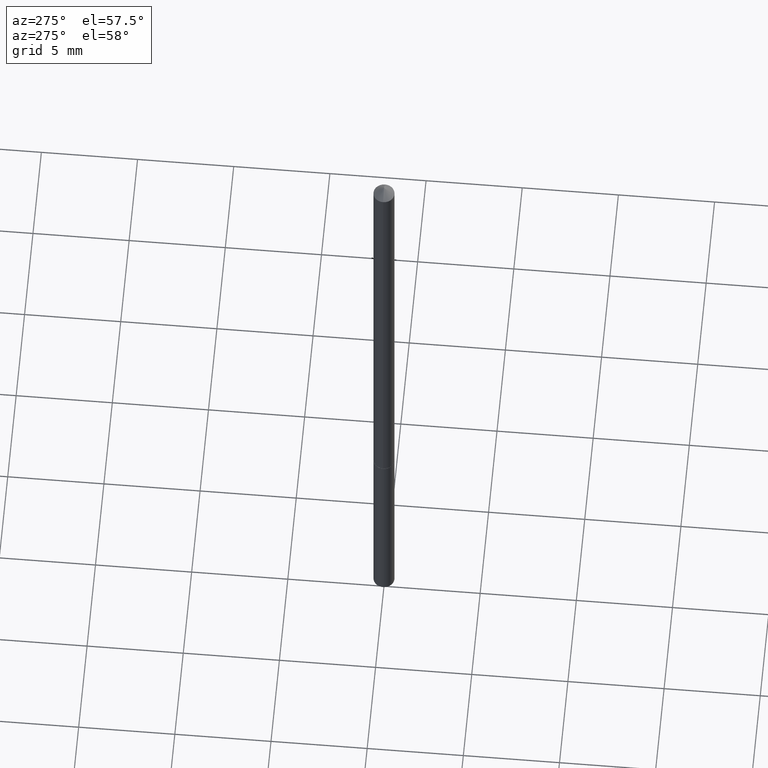
[diagram: clean part render]
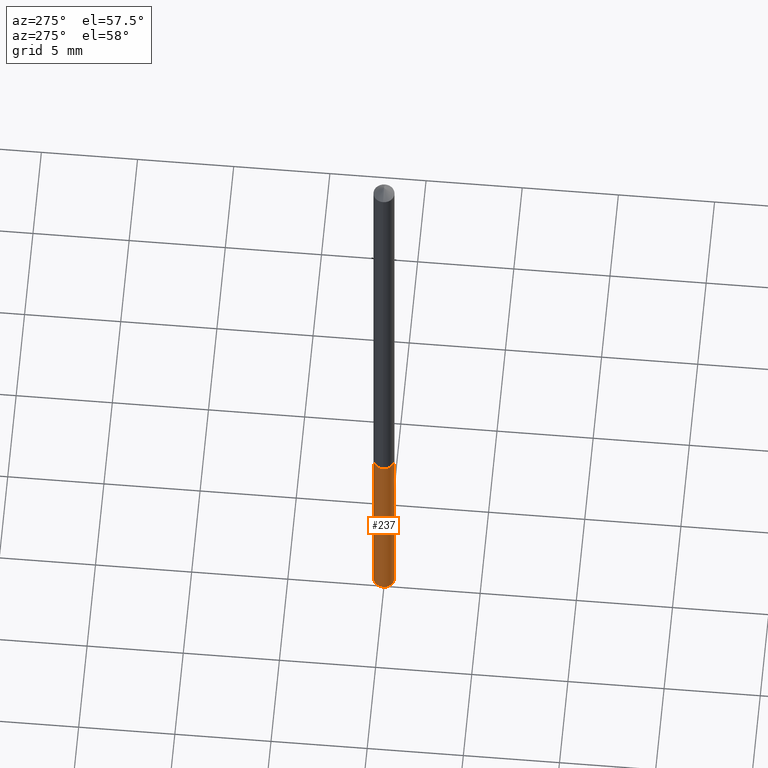
[diagram: same view with one face highlighted and labeled with its STEP entity id]
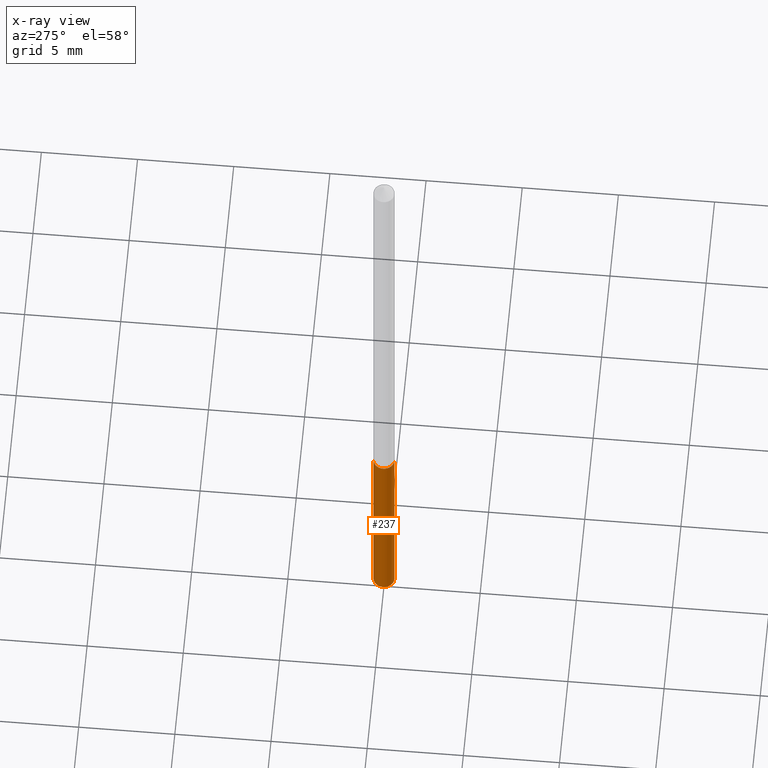
[diagram: x-ray of the same camera — body ghosted, the highlighted face saturated]
A machine part, auxiliary view. The second image highlights one B-rep face of the part: STEP entity #237.
The next image is the same camera in x-ray: the body ghosted, the highlighted face saturated — about 0% of this face is hidden behind the body in this view.
In plain terms, the highlighted cylindrical surface (edge-blend (fillet) strip) has radius 0.5461 mm, axis along (-0, 0, 1).
Its self-contained STEP definition (entity closure, byte-faithful):
#9 = VERTEX_POINT ( 'NONE', #14 ) ;
#12 = AXIS2_PLACEMENT_3D ( 'NONE', #102, #357, #213 ) ;
#14 = CARTESIAN_POINT ( 'NONE',  ( -1.501336975702182702E-16, -0.02150000000000521286, -1.492174639963277150 ) ) ;
#16 = ORIENTED_EDGE ( 'NONE', *, *, #87, .F. ) ;
#20 = LINE ( 'NONE', #83, #360 ) ;
#21 = FACE_OUTER_BOUND ( 'NONE', #165, .T. ) ;
#49 = AXIS2_PLACEMENT_3D ( 'NONE', #327, #336, #303 ) ;
#55 = CARTESIAN_POINT ( 'NONE',  ( 1.527666881884470178E-16, 0.02149999999999635883, -1.043000000000000149 ) ) ;
#59 = DIRECTION ( 'NONE',  ( -2.445459886220221003E-29, 3.491494112740597755E-15, 1.000000000000000000 ) ) ;
#76 = ORIENTED_EDGE ( 'NONE', *, *, #263, .F. ) ;
#82 = CYLINDRICAL_SURFACE ( 'NONE', #49, 0.02150000000000000175 ) ;
#83 = CARTESIAN_POINT ( 'NONE',  ( -1.501336975702292156E-16, -0.02150000000000364120, -1.042999999999999927 ) ) ;
#87 = EDGE_CURVE ( 'NONE', #229, #317, #210, .T. ) ;
#98 = VECTOR ( 'NONE', #107, 39.37007874015748143 ) ;
#99 = ORIENTED_EDGE ( 'NONE', *, *, #207, .T. ) ;
#102 = CARTESIAN_POINT ( 'NONE',  ( 2.550623964851097905E-29, -3.641615036413401595E-15, -1.043000000000000149 ) ) ;
#107 = DIRECTION ( 'NONE',  ( -2.445459886220221283E-29, 3.491494112740597755E-15, 1.000000000000000000 ) ) ;
#108 = CIRCLE ( 'NONE', #324, 0.02150000000000000175 ) ;
#121 = CARTESIAN_POINT ( 'NONE',  ( -1.501336975702292156E-16, -0.02150000000000364120, -1.042999999999999927 ) ) ;
#165 = EDGE_LOOP ( 'NONE', ( #76, #99, #224, #16 ) ) ;
#200 = CARTESIAN_POINT ( 'NONE',  ( 3.649062528788701556E-29, -5.209905647437560754E-15, -1.492174639963277150 ) ) ;
#203 = VERTEX_POINT ( 'NONE', #249 ) ;
#207 = EDGE_CURVE ( 'NONE', #203, #9, #108, .T. ) ;
#210 = CIRCLE ( 'NONE', #12, 0.02150000000000000175 ) ;
#213 = DIRECTION ( 'NONE',  ( -6.982962677686265922E-15, -1.000000000000000000, 6.353134868986658336E-15 ) ) ;
#218 = DIRECTION ( 'NONE',  ( -6.982962677686265922E-15, -1.000000000000000000, 0.000000000000000000 ) ) ;
#220 = CARTESIAN_POINT ( 'NONE',  ( 1.527666881884581112E-16, 0.02149999999999636230, -1.043000000000000149 ) ) ;
#224 = ORIENTED_EDGE ( 'NONE', *, *, #283, .T. ) ;
#229 = VERTEX_POINT ( 'NONE', #220 ) ;
#237 = ADVANCED_FACE ( 'NONE', ( #21 ), #82, .T. ) ;
#249 = CARTESIAN_POINT ( 'NONE',  ( 1.527666881884580372E-16, 0.02149999999999479411, -1.492174639963277150 ) ) ;
#263 = EDGE_CURVE ( 'NONE', #203, #229, #271, .T. ) ;
#271 = LINE ( 'NONE', #55, #98 ) ;
#283 = EDGE_CURVE ( 'NONE', #9, #317, #20, .T. ) ;
#301 = DIRECTION ( 'NONE',  ( -2.445459886220221283E-29, 3.491494112740597755E-15, 1.000000000000000000 ) ) ;
#303 = DIRECTION ( 'NONE',  ( -6.982962677686265922E-15, -1.000000000000000000, 6.353134868986658336E-15 ) ) ;
#317 = VERTEX_POINT ( 'NONE', #121 ) ;
#324 = AXIS2_PLACEMENT_3D ( 'NONE', #200, #59, #218 ) ;
#327 = CARTESIAN_POINT ( 'NONE',  ( 2.550623964851097905E-29, -3.641615036413401595E-15, -1.043000000000000149 ) ) ;
#336 = DIRECTION ( 'NONE',  ( -2.445459886220221003E-29, 3.491494112740597755E-15, 1.000000000000000000 ) ) ;
#357 = DIRECTION ( 'NONE',  ( -2.445459886220221003E-29, 3.491494112740597755E-15, 1.000000000000000000 ) ) ;
#360 = VECTOR ( 'NONE', #301, 39.37007874015748143 ) ;